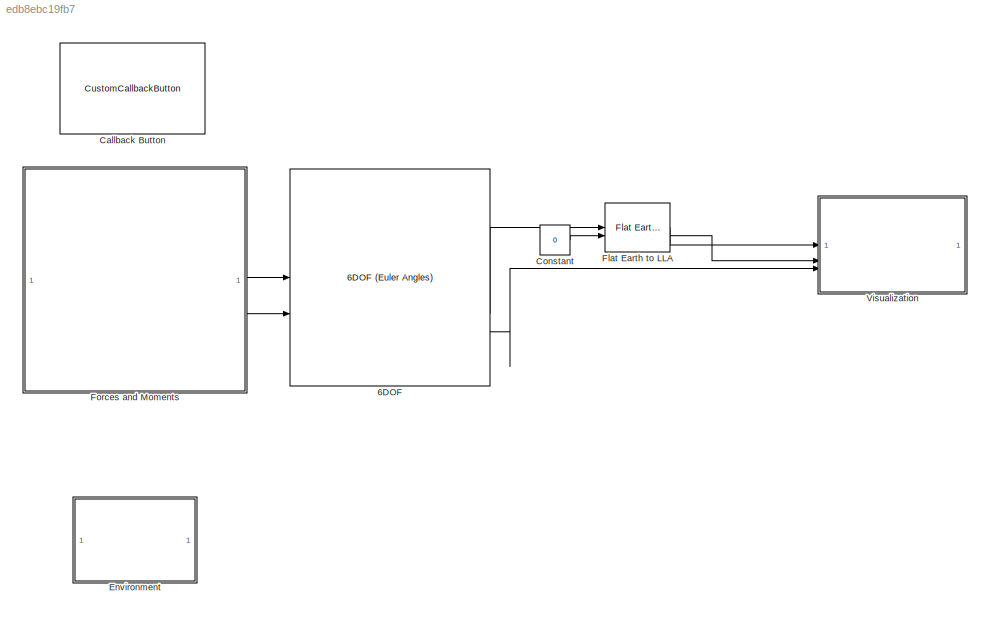
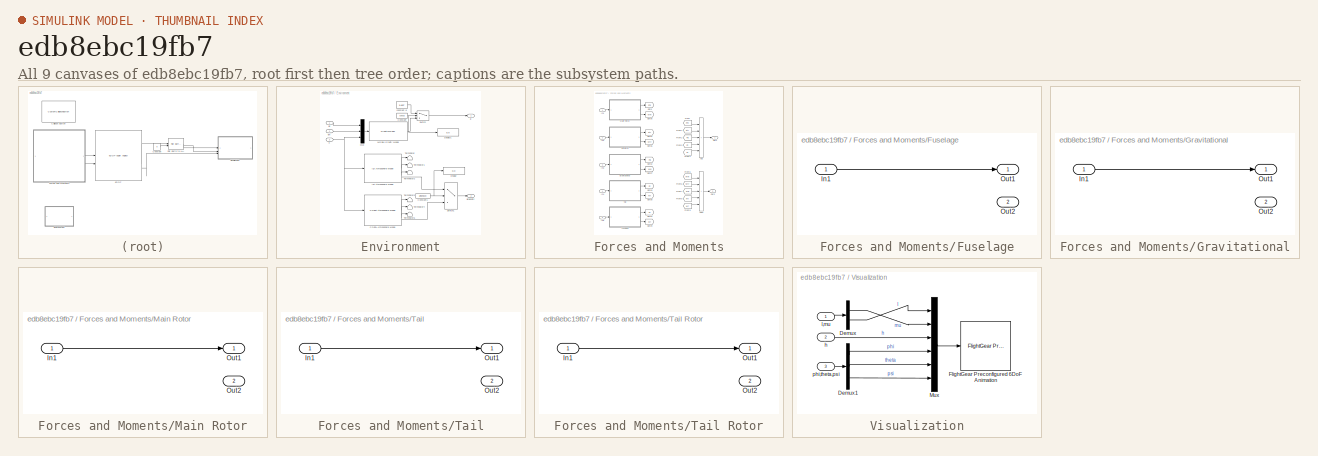
[diagram: thumbnail index - all 9 canvases of the model, root first then tree order]
MODEL slx_edb8ebc19fb7
KIND model
CONFIG AbsTol = auto
CONFIG EnableMultiTasking = off
CONFIG FixedStep = auto
CONFIG MaxStep = auto
CONFIG MinStep = auto
CONFIG RelTol = 1e-3
CONFIG SampleTimeConstraint = Unconstrained
CONFIG SolverName = VariableStepAuto
CONFIG StartTime = 0.0
CONFIG StopTime = 10.0
BLOCK [Reference] 6DOF  REF=shared6dof/6DOF (Euler Angles)
  LibrarySourceBlock = aerolib6dof2/6DOF (Euler Angles)
  SourceBlock = shared6dof/6DOF (Euler Angles)
  SourceType = 6DOF EoM (Body Axis)
BLOCK [CustomCallbackButton] Callback Button
  Configuration = {"components":[{"name":"BackgroundImageComponent","settings":{"image":{"size":[0,0],"src":"default","srcOrientation":"Right"},"position":[0,0,1,1]}},{"name":"ButtonStateComponent","settings":{"buttonType":"momentary","clickFcn":"run(\"HelicopterParameterEstimation.mlapp\");","onValue":1,"position":[0,0,1,1],"pressDelay":"500","pressFcn":"","repeatInterval":"0","states":[{"horizontalAlignment":"cen...<+2128ch>
  CustomBackgroundColor = {"color":[0.9568627451,0.9568627451,0.9568627451],"show":true}
BLOCK [Constant] Constant
  Value = 0
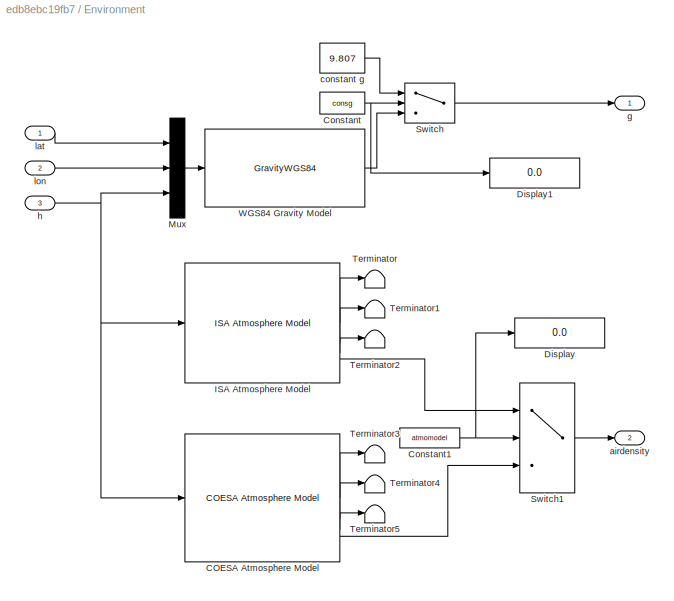
BLOCK [SubSystem] Environment
BLOCK [Reference] Environment/COESA Atmosphere Model  REF=aerolibatmos2/COESA Atmosphere Model
  SourceBlock = aerolibatmos2/COESA Atmosphere Model
  SourceType = Atmosphere Model
BLOCK [Constant] Environment/Constant
  Value = consg
BLOCK [Constant] Environment/Constant1
  Value = atmomodel
BLOCK [Display] Environment/Display
  Decimation = 1
BLOCK [Display] Environment/Display1
  Decimation = 1
BLOCK [Reference] Environment/ISA Atmosphere Model  REF=aerolibatmos2/ISA Atmosphere Model
  SourceBlock = aerolibatmos2/ISA Atmosphere Model
  SourceType = International Standard Atmosphere Model
BLOCK [Mux] Environment/Mux
  DisplayOption = bar
  Inputs = 3
BLOCK [Switch] Environment/Switch
  Criteria = u2 ~= 0
  InputSameDT = off
  SaturateOnIntegerOverflow = off
BLOCK [Switch] Environment/Switch1
  Criteria = u2 ~= 0
  InputSameDT = off
  SaturateOnIntegerOverflow = off
BLOCK [Terminator] Environment/Terminator
BLOCK [Terminator] Environment/Terminator1
BLOCK [Terminator] Environment/Terminator2
BLOCK [Terminator] Environment/Terminator3
BLOCK [Terminator] Environment/Terminator4
BLOCK [Terminator] Environment/Terminator5
BLOCK [GravityWGS84] Environment/WGS84 Gravity Model  
BLOCK [Outport] Environment/airdensity
  Port = 2
BLOCK [Constant] Environment/constant g
  NameLocation = top
  Value = 9.807
BLOCK [Outport] Environment/g
BLOCK [Inport] Environment/h
  Port = 3
BLOCK [Inport] Environment/lat
BLOCK [Inport] Environment/lon
  Port = 2
BLOCK [Reference] Flat Earth to LLA  REF=aerolibtransform2/Flat Earth to LLA
  SourceBlock = aerolibtransform2/Flat Earth to LLA
  SourceType = Flat Earth to LLA
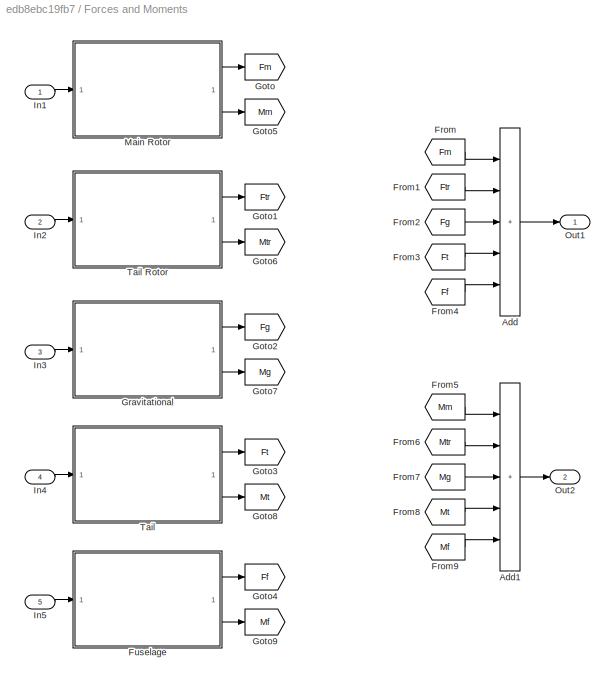
BLOCK [SubSystem] Forces and Moments
BLOCK [Sum] Forces and Moments/Add
  IconShape = rectangular
  Inputs = +++++
BLOCK [Sum] Forces and Moments/Add1
  IconShape = rectangular
  Inputs = +++++
BLOCK [From] Forces and Moments/From
  GotoTag = Fm
BLOCK [From] Forces and Moments/From1
  GotoTag = Ftr
BLOCK [From] Forces and Moments/From2
  GotoTag = Fg
BLOCK [From] Forces and Moments/From3
  GotoTag = Ft
BLOCK [From] Forces and Moments/From4
  GotoTag = Ff
BLOCK [From] Forces and Moments/From5
  GotoTag = Mm
BLOCK [From] Forces and Moments/From6
  GotoTag = Mtr
BLOCK [From] Forces and Moments/From7
  GotoTag = Mg
BLOCK [From] Forces and Moments/From8
  GotoTag = Mt
BLOCK [From] Forces and Moments/From9
  GotoTag = Mf
BLOCK [SubSystem] Forces and Moments/Fuselage
BLOCK [Inport] Forces and Moments/Fuselage/In1
BLOCK [Outport] Forces and Moments/Fuselage/Out1
BLOCK [Outport] Forces and Moments/Fuselage/Out2
  Port = 2
BLOCK [Goto] Forces and Moments/Goto
  GotoTag = Fm
BLOCK [Goto] Forces and Moments/Goto1
  GotoTag = Ftr
BLOCK [Goto] Forces and Moments/Goto2
  GotoTag = Fg
BLOCK [Goto] Forces and Moments/Goto3
  GotoTag = Ft
BLOCK [Goto] Forces and Moments/Goto4
  GotoTag = Ff
BLOCK [Goto] Forces and Moments/Goto5
  GotoTag = Mm
BLOCK [Goto] Forces and Moments/Goto6
  GotoTag = Mtr
BLOCK [Goto] Forces and Moments/Goto7
  GotoTag = Mg
BLOCK [Goto] Forces and Moments/Goto8
  GotoTag = Mt
BLOCK [Goto] Forces and Moments/Goto9
  GotoTag = Mf
BLOCK [SubSystem] Forces and Moments/Gravitational
BLOCK [Inport] Forces and Moments/Gravitational/In1
BLOCK [Outport] Forces and Moments/Gravitational/Out1
BLOCK [Outport] Forces and Moments/Gravitational/Out2
  Port = 2
BLOCK [Inport] Forces and Moments/In1
BLOCK [Inport] Forces and Moments/In2
  Port = 2
BLOCK [Inport] Forces and Moments/In3
  Port = 3
BLOCK [Inport] Forces and Moments/In4
  Port = 4
BLOCK [Inport] Forces and Moments/In5
  Port = 5
BLOCK [SubSystem] Forces and Moments/Main Rotor
BLOCK [Inport] Forces and Moments/Main Rotor/In1
BLOCK [Outport] Forces and Moments/Main Rotor/Out1
BLOCK [Outport] Forces and Moments/Main Rotor/Out2
  Port = 2
BLOCK [Outport] Forces and Moments/Out1
BLOCK [Outport] Forces and Moments/Out2
  Port = 2
BLOCK [SubSystem] Forces and Moments/Tail
BLOCK [SubSystem] Forces and Moments/Tail Rotor
BLOCK [Inport] Forces and Moments/Tail Rotor/In1
BLOCK [Outport] Forces and Moments/Tail Rotor/Out1
BLOCK [Outport] Forces and Moments/Tail Rotor/Out2
  Port = 2
BLOCK [Inport] Forces and Moments/Tail/In1
BLOCK [Outport] Forces and Moments/Tail/Out1
BLOCK [Outport] Forces and Moments/Tail/Out2
  Port = 2
BLOCK [SubSystem] Visualization
BLOCK [Demux] Visualization/Demux
  Outputs = 2
BLOCK [Demux] Visualization/Demux1
  Outputs = 3
BLOCK [Reference] Visualization/FlightGear Preconfigured 6DoF Animation  REF=aerolibfltsims/FlightGear
Preconfigured
6DoF Animation
  SourceBlock = aerolibfltsims/FlightGear\nPreconfigured\n6DoF Animation
  SourceType = FlightGearQuick6DoFAnimation
BLOCK [Mux] Visualization/Mux
  DisplayOption = bar
  Inputs = 6
BLOCK [Inport] Visualization/h
  Port = 2
BLOCK [Inport] Visualization/l,mu
BLOCK [Inport] Visualization/phi,theta,psi
  Port = 3
LINE 6DOF:2 -> Flat Earth to LLA:1
LINE 6DOF:3 -> Visualization:3
LINE Constant:1 -> Flat Earth to LLA:2
LINE Environment/COESA Atmosphere Model:1 -> Environment/Terminator3:1
LINE Environment/COESA Atmosphere Model:2 -> Environment/Terminator4:1
LINE Environment/COESA Atmosphere Model:3 -> Environment/Terminator5:1
LINE Environment/COESA Atmosphere Model:4 -> Environment/Switch1:3
NET Environment/Constant1:1 -> Environment/Display:1, Environment/Switch1:2
NET Environment/Constant:1 -> Environment/Display1:1, Environment/Switch:2
LINE Environment/ISA Atmosphere Model:1 -> Environment/Terminator:1
LINE Environment/ISA Atmosphere Model:2 -> Environment/Terminator1:1
LINE Environment/ISA Atmosphere Model:3 -> Environment/Terminator2:1
LINE Environment/ISA Atmosphere Model:4 -> Environment/Switch1:1
LINE Environment/Mux:1 -> Environment/WGS84 Gravity Model  :1
LINE Environment/Switch1:1 -> Environment/airdensity:1
LINE Environment/Switch:1 -> Environment/g:1
LINE Environment/WGS84 Gravity Model  :1 -> Environment/Switch:3
LINE Environment/constant g:1 -> Environment/Switch:1
NET Environment/h:1 -> Environment/COESA Atmosphere Model:1, Environment/ISA Atmosphere Model:1, Environment/Mux:3
LINE Environment/lat:1 -> Environment/Mux:1
LINE Environment/lon:1 -> Environment/Mux:2
LINE Flat Earth to LLA:1 -> Visualization:1
LINE Flat Earth to LLA:2 -> Visualization:2
LINE Forces and Moments/Add1:1 -> Forces and Moments/Out2:1
LINE Forces and Moments/Add:1 -> Forces and Moments/Out1:1
LINE Forces and Moments/From1:1 -> Forces and Moments/Add:2
LINE Forces and Moments/From2:1 -> Forces and Moments/Add:3
LINE Forces and Moments/From3:1 -> Forces and Moments/Add:4
LINE Forces and Moments/From4:1 -> Forces and Moments/Add:5
LINE Forces and Moments/From5:1 -> Forces and Moments/Add1:1
LINE Forces and Moments/From6:1 -> Forces and Moments/Add1:2
LINE Forces and Moments/From7:1 -> Forces and Moments/Add1:3
LINE Forces and Moments/From8:1 -> Forces and Moments/Add1:4
LINE Forces and Moments/From9:1 -> Forces and Moments/Add1:5
LINE Forces and Moments/From:1 -> Forces and Moments/Add:1
LINE Forces and Moments/Fuselage/In1:1 -> Forces and Moments/Fuselage/Out1:1
LINE Forces and Moments/Fuselage:1 -> Forces and Moments/Goto4:1
LINE Forces and Moments/Fuselage:2 -> Forces and Moments/Goto9:1
LINE Forces and Moments/Gravitational/In1:1 -> Forces and Moments/Gravitational/Out1:1
LINE Forces and Moments/Gravitational:1 -> Forces and Moments/Goto2:1
LINE Forces and Moments/Gravitational:2 -> Forces and Moments/Goto7:1
LINE Forces and Moments/In1:1 -> Forces and Moments/Main Rotor:1
LINE Forces and Moments/In2:1 -> Forces and Moments/Tail Rotor:1
LINE Forces and Moments/In3:1 -> Forces and Moments/Gravitational:1
LINE Forces and Moments/In4:1 -> Forces and Moments/Tail:1
LINE Forces and Moments/In5:1 -> Forces and Moments/Fuselage:1
LINE Forces and Moments/Main Rotor/In1:1 -> Forces and Moments/Main Rotor/Out1:1
LINE Forces and Moments/Main Rotor:1 -> Forces and Moments/Goto:1
LINE Forces and Moments/Main Rotor:2 -> Forces and Moments/Goto5:1
LINE Forces and Moments/Tail Rotor/In1:1 -> Forces and Moments/Tail Rotor/Out1:1
LINE Forces and Moments/Tail Rotor:1 -> Forces and Moments/Goto1:1
LINE Forces and Moments/Tail Rotor:2 -> Forces and Moments/Goto6:1
LINE Forces and Moments/Tail/In1:1 -> Forces and Moments/Tail/Out1:1
LINE Forces and Moments/Tail:1 -> Forces and Moments/Goto3:1
LINE Forces and Moments/Tail:2 -> Forces and Moments/Goto8:1
LINE Forces and Moments:1 -> 6DOF:1
LINE Forces and Moments:2 -> 6DOF:2
LINE Visualization/Demux1:1 -> Visualization/Mux:4
LINE Visualization/Demux1:2 -> Visualization/Mux:5
LINE Visualization/Demux1:3 -> Visualization/Mux:6
LINE Visualization/Demux:1 -> Visualization/Mux:2
LINE Visualization/Demux:2 -> Visualization/Mux:1
LINE Visualization/Mux:1 -> Visualization/FlightGear Preconfigured 6DoF Animation:1
LINE Visualization/h:1 -> Visualization/Mux:3
LINE Visualization/l,mu:1 -> Visualization/Demux:1
LINE Visualization/phi,theta,psi:1 -> Visualization/Demux1:1
note: NET lines group one-source signal fan-out (src -> all destinations, sorted); 1:1 wires keep LINE
